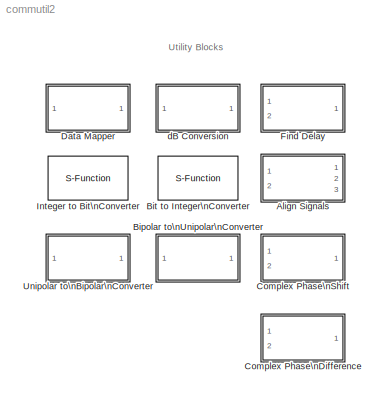
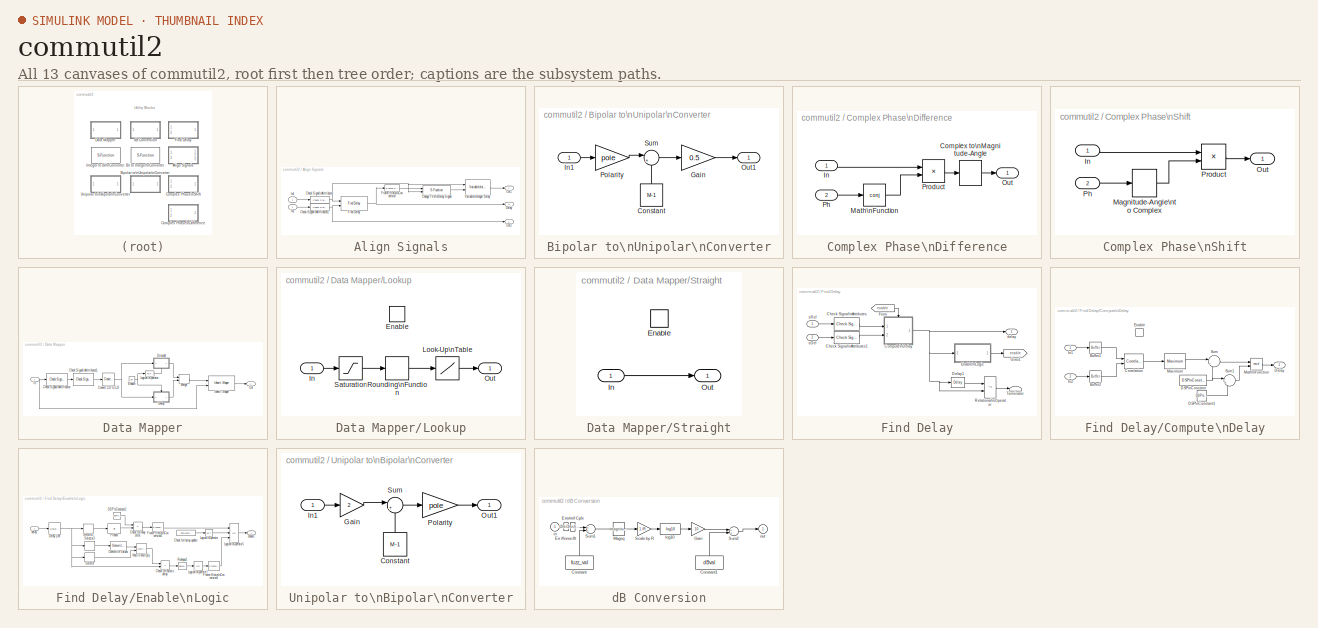
[diagram: thumbnail index - all 13 canvases of the model, root first then tree order]
MODEL commutil2
KIND library
BLOCK [SubSystem] Align Signals
  MaskCallbackString = |commblkalignsigs(gcb,'cbStopUpdate');|
  MaskDescription = Align two signals s1 and s2 by finding the delay between them using cross-correlation techniques, then by delaying s1 by the computed delay.  The input signal s2 should be delayed relative to the input s1, or else the computed delay will be incorrect, and the signals will not be properly aligned.
  MaskDisplay = disp('Align\\nSignals');\nport_label('input', 1, 's1');\nport_label('input', 2, 's2');\nport_label('output', 1, 's1');\nport_label('output', 2, 's2');\nport_label('output', 3, 'delay');
  MaskEnableString = on,on,on
  MaskHelp = helpview(commbhelp)
  MaskIconFrame = on
  MaskIconOpaque = on
  MaskIconRotate = none
  MaskIconUnits = autoscale
  MaskInitialization = commblkalignsigs(gcb,'init');
  MaskPromptString = Correlation window length (samples):|Disable recurring updates|Number of constant delay outputs to disable updates:
  MaskSelfModifiable = on
  MaskStyleString = edit,checkbox,edit
  MaskTabNameString = ,,
  MaskToolTipString = on,on,on
  MaskTunableValueString = on,on,on
  MaskType = Align Signals
  MaskValueString = 200|off|3
  MaskVarAliasString = ,,
  MaskVariables = corrLength=@1;stopUpdate=@2;numConstDelay=@3;
  MaskVisibilityString = on,on,off
  Ports = [2, 3]
  TreatAsAtomicUnit = off
BLOCK [S-Function] Align Signals/Change Ts of\nDelay Signal
  FunctionName = scomzohnoparams
  MaskDisplay = disp('Zero Order\\nHold');\nport_label('input', 1, 'In');\nport_label('input', 2, 'Ref');\nport_label('output', 1, 'Out');
  MaskIconFrame = on
  MaskIconOpaque = on
  MaskIconRotate = none
  MaskIconUnits = autoscale
  Ports = [2, 1]
BLOCK [Reference] Align Signals/Check Signal\nAttributes  REF=dspsigattribs/Check Signal\nAttributes
  Complexity = Ignore
  DatatypeCheckMethod = Ignore
  DatatypeGeneral = Boolean
  Dimensions = Vector (1-D or 2-D)
  DimsCheckMethod = Is...
  DtypeFixedSpecific = Any fixed-point
  DtypeFloatSpecific = Any floating-point
  DtypeIntSpecific = Any integer
  Frame = Sample-based
  Ports = [1, 1]
  SampleMode = Ignore
  ShowPortLabels = on
  SigAttribCheckMethod = Matches attributes exactly
  SourceBlock = dspsigattribs/Check Signal\nAttributes
  SourceType = Check Signal Attributes
BLOCK [Reference] Align Signals/Check Signal\nAttributes1  REF=dspsigattribs/Check Signal\nAttributes
  Complexity = Ignore
  DatatypeCheckMethod = Ignore
  DatatypeGeneral = Boolean
  Dimensions = Vector (1-D or 2-D)
  DimsCheckMethod = Is...
  DtypeFixedSpecific = Any fixed-point
  DtypeFloatSpecific = Any floating-point
  DtypeIntSpecific = Any integer
  Frame = Sample-based
  Ports = [1, 1]
  SampleMode = Ignore
  ShowPortLabels = on
  SigAttribCheckMethod = Matches attributes exactly
  SourceBlock = dspsigattribs/Check Signal\nAttributes
  SourceType = Check Signal Attributes
BLOCK [Outport] Align Signals/Delay
  BusOutputAsStruct = off
  IconDisplay = Port number
  Port = 3
BLOCK [Reference] Align Signals/Find Delay  REF=commutil2/Find Delay
  Ports = [2, 1]
  ShowPortLabels = on
  SourceBlock = commutil2/Find Delay
  SourceType = Find Delay
  chgSigOP = off
  corrLength = corrLength
  numConstDelay = 3
  stopUpdate = off
BLOCK [Reference] Align Signals/Frame Status\nConversion  REF=dspsigattribs/Frame Status\nConversion
  Ports = [1, 1]
  ShowPortLabels = off
  SourceBlock = dspsigattribs/Frame Status\nConversion
  SourceType = Frame Status Conversion
  growRefPort = off
  outframe = Frame-based
BLOCK [Inport] Align Signals/In1
  IconDisplay = Port number
BLOCK [Inport] Align Signals/In2
  IconDisplay = Port number
  Port = 2
BLOCK [Outport] Align Signals/Out1
  BusOutputAsStruct = off
  IconDisplay = Port number
BLOCK [Outport] Align Signals/Out2
  BusOutputAsStruct = off
  IconDisplay = Port number
  Port = 2
BLOCK [Reference] Align Signals/Variable\nInteger Delay  REF=dspsigops/Variable\nInteger Delay
  Ports = [2, 1]
  SourceBlock = dspsigops/Variable\nInteger Delay
  SourceType = Variable Integer Delay
  dmax = corrLength
  ic = 0
BLOCK [SubSystem] Bipolar to\nUnipolar\nConverter
  MaskCallbackString = |
  MaskDescription = Convert a bipolar signal into a unipolar signal in the range [0, M-1], where M is the M-ary number.
  MaskDisplay = disp('Bipolar to\\nUnipolar\\nConverter');\n
  MaskEnableString = on,on
  MaskHelp = helpview(commbhelp);
  MaskIconFrame = on
  MaskIconOpaque = on
  MaskIconRotate = none
  MaskIconUnits = autoscale
  MaskInitialization = if strcmp(polarity, 'Negative')\n   pole = -1;\nelse\n   pole = 1;\nend
  MaskPromptString = M-ary number:|Polarity:
  MaskStyleString = edit,popup(Positive|Negative)
  MaskTabNameString = ,
  MaskToolTipString = on,on
  MaskTunableValueString = on,on
  MaskType = Bipolar to Unipolar Converter
  MaskValueString = 4|Positive
  MaskVarAliasString = ,
  MaskVariables = M=@1;polarity=&2;
  MaskVisibilityString = on,on
  Ports = [1, 1]
  TreatAsAtomicUnit = off
BLOCK [Constant] Bipolar to\nUnipolar\nConverter/Constant
  Value = M-1
BLOCK [Gain] Bipolar to\nUnipolar\nConverter/Gain
  Gain = 0.5
  SaturateOnIntegerOverflow = off
BLOCK [Inport] Bipolar to\nUnipolar\nConverter/In1
  IconDisplay = Port number
BLOCK [Outport] Bipolar to\nUnipolar\nConverter/Out1
  BusOutputAsStruct = off
  IconDisplay = Port number
BLOCK [Gain] Bipolar to\nUnipolar\nConverter/Polarity
  Gain = pole
  SaturateOnIntegerOverflow = off
BLOCK [Sum] Bipolar to\nUnipolar\nConverter/Sum
  IconShape = round
  Inputs = |++
  Ports = [2, 1]
  SaturateOnIntegerOverflow = off
BLOCK [S-Function] Bit to Integer\nConverter
  FunctionName = scominttobit
  MaskDescription = Map a vector of bits to a corresponding vector of integers. The first bit of the input vector is assumed to be the most significant bit (MSB). The Number of bits per integer value defines how many bits are mapped to each integer.\n\nIn case of sample-based inputs, the input must be a vector whose width equals the number of bits per integer. In case of frame-based inputs, the input must be a column...<+77ch>
  MaskDisplay = disp('Bit to Integer\\nConverter')
  MaskEnableString = on
  MaskHelp = helpview(commbhelp)
  MaskIconFrame = on
  MaskIconOpaque = on
  MaskIconRotate = none
  MaskIconUnits = autoscale
  MaskPromptString = Number of bits per integer:
  MaskStyleString = edit
  MaskToolTipString = on
  MaskTunableValueString = on
  MaskType = Bit to Integer Converter
  MaskValueString = 3
  MaskVariables = nbits=@1;
  MaskVisibilityString = on
  Parameters = nbits,1
  Ports = [1, 1]
BLOCK [SubSystem] Complex Phase\nDifference
  MaskDescription = Output the phase difference between the two complex input signals. The range of the phase difference is from -pi to pi.
  MaskDisplay = disp('Complex Phase\\nDifference');
  MaskHelp = helpview(commbhelp)
  MaskIconFrame = on
  MaskIconOpaque = on
  MaskIconRotate = none
  MaskIconUnits = autoscale
  MaskType = Complex Phase Difference
  Ports = [2, 1]
  TreatAsAtomicUnit = off
BLOCK [ComplexToMagnitudeAngle] Complex Phase\nDifference/Complex to\nMagnitude-Angle
  Output = Angle
  Ports = [1, 1]
BLOCK [Inport] Complex Phase\nDifference/In
  IconDisplay = Port number
BLOCK [Math] Complex Phase\nDifference/Math\nFunction
  Operator = conj
  Ports = [1, 1]
BLOCK [Outport] Complex Phase\nDifference/Out
  BusOutputAsStruct = off
  IconDisplay = Port number
BLOCK [Inport] Complex Phase\nDifference/Ph
  IconDisplay = Port number
  Port = 2
BLOCK [Product] Complex Phase\nDifference/Product
  Ports = [2, 1]
  RndMeth = Floor
BLOCK [SubSystem] Complex Phase\nShift
  MaskDescription = Shift the phase of the complex input signal by the \"Ph\" input value.
  MaskDisplay = disp('Complex\\nPhase Shift');
  MaskHelp = helpview(commbhelp)
  MaskIconFrame = on
  MaskIconOpaque = off
  MaskIconRotate = none
  MaskIconUnits = autoscale
  MaskType = Complex Phase Shift
  Ports = [2, 1]
  TreatAsAtomicUnit = off
BLOCK [Inport] Complex Phase\nShift/In
  IconDisplay = Port number
BLOCK [MagnitudeAngleToComplex] Complex Phase\nShift/Magnitude-Angle\nto Complex
  ConstantPart = 1
  Input = Angle
  Ports = [1, 1]
BLOCK [Outport] Complex Phase\nShift/Out
  BusOutputAsStruct = off
  IconDisplay = Port number
BLOCK [Inport] Complex Phase\nShift/Ph
  IconDisplay = Port number
  Port = 2
BLOCK [Product] Complex Phase\nShift/Product
  Ports = [2, 1]
  RndMeth = Floor
BLOCK [SubSystem] Data Mapper
  MaskCallbackString = commblkmapdata(gcb,'MapMode');||
  MaskDescription = Map integer symbols from one coding scheme to another.\n\nThe input can be either a scalar, a sample-based vector, or a frame-based column vector.
  MaskDisplay = disp('Data\\nMapper');
  MaskEnableString = on,on,off
  MaskHelp = helpview(commbhelp)
  MaskIconFrame = on
  MaskIconOpaque = on
  MaskIconRotate = none
  MaskIconUnits = autoscale
  MaskInitialization = [En,IPValues,OPValues,SatValue]=commblkmapdata(gcb,'init',{MapMode M MapVec});
  MaskPromptString = Mapping mode:|Symbol set size (M):|Mapping vector:
  MaskSelfModifiable = on
  MaskStyleString = popup(Binary to Gray|Gray to Binary|User Defined|Straight through),edit,edit
  MaskTabNameString = ,,
  MaskToolTipString = on,on,on
  MaskTunableValueString = on,on,on
  MaskType = Data Mapper
  MaskValueString = Binary to Gray|8|[0 1 3 2 7 6 4 5]
  MaskVarAliasString = ,,
  MaskVariables = MapMode=@1;M=@2;MapVec=@3;
  MaskVisibilityString = on,on,on
  Ports = [1, 1]
  TreatAsAtomicUnit = off
BLOCK [Reference] Data Mapper/Check Signal\nAttributes  REF=dspsigattribs/Check Signal\nAttributes
  Complexity = Ignore
  DatatypeCheckMethod = Ignore
  DatatypeGeneral = Boolean
  Dimensions = Full matrix (2-D)
  DimsCheckMethod = Is...
  DtypeFixedSpecific = Any fixed-point
  DtypeFloatSpecific = Any floating-point
  DtypeIntSpecific = Any integer
  Frame = Ignore
  Ports = [1, 1]
  SampleMode = Ignore
  SigAttribCheckMethod = Matches attributes exactly
  SourceBlock = dspsigattribs/Check Signal\nAttributes
  SourceType = Check Signal Attributes
BLOCK [Reference] Data Mapper/Check Signal\nAttributes1  REF=dspsigattribs/Check Signal\nAttributes
  Complexity = Ignore
  DatatypeCheckMethod = Ignore
  DatatypeGeneral = Boolean
  Dimensions = Row vector (2-D)
  DimsCheckMethod = Is...
  DtypeFixedSpecific = Any fixed-point
  DtypeFloatSpecific = Any floating-point
  DtypeIntSpecific = Any integer
  Frame = Frame-based
  Ports = [1, 1]
  SampleMode = Ignore
  SigAttribCheckMethod = Matches attributes exactly
  SourceBlock = dspsigattribs/Check Signal\nAttributes
  SourceType = Check Signal Attributes
BLOCK [Reference] Data Mapper/Convert 2-D to 1-D  REF=dspsigattribs/Convert 2-D to 1-D
  Ports = [1, 1]
  SourceBlock = dspsigattribs/Convert 2-D to 1-D
  SourceType = Convert 2-D to 1-D
BLOCK [Constant] Data Mapper/Enable
  Value = En
BLOCK [Inport] Data Mapper/In
  IconDisplay = Port number
BLOCK [Reference] Data Mapper/Inherit Shape  REF=commblksprivate/Inherit Shape
  Ports = [2, 1]
  SourceBlock = commblksprivate/Inherit Shape
  SourceType = Inherit Shape
BLOCK [Logic] Data Mapper/Logical\nOperator
  Inputs = 1
  LogicDataType = float('double')
  Operator = NOT
  OutDataTypeMode = Specify via dialog
  Ports = [1, 1]
BLOCK [SubSystem] Data Mapper/Lookup
  Ports = [1, 1, 1]
  TreatAsAtomicUnit = on
BLOCK [EnablePort] Data Mapper/Lookup/Enable
  Ports = []
BLOCK [Inport] Data Mapper/Lookup/In
  IconDisplay = Port number
BLOCK [Lookup] Data Mapper/Lookup/Look-Up\nTable
  InputValues = IPValues
  OutputValues = OPValues
BLOCK [Outport] Data Mapper/Lookup/Out
  BusOutputAsStruct = off
  IconDisplay = Port number
BLOCK [Rounding] Data Mapper/Lookup/Rounding\nFunction
  Operator = round
BLOCK [Saturate] Data Mapper/Lookup/Saturation
  LowerLimit = 0
  UpperLimit = SatValue
BLOCK [Merge] Data Mapper/Merge
  Ports = [2, 1]
BLOCK [Outport] Data Mapper/Out
  BusOutputAsStruct = off
  IconDisplay = Port number
BLOCK [SubSystem] Data Mapper/Straight
  Ports = [1, 1, 1]
  TreatAsAtomicUnit = on
BLOCK [EnablePort] Data Mapper/Straight/Enable
  Ports = []
BLOCK [Inport] Data Mapper/Straight/In
  IconDisplay = Port number
BLOCK [Outport] Data Mapper/Straight/Out
  BusOutputAsStruct = off
  IconDisplay = Port number
BLOCK [SubSystem] Find Delay
  MaskCallbackString = |commblkfinddelay(gcb,'cbChgSigOP');|commblkfinddelay(gcb,'cbStopUpdate');|
  MaskDescription = Find the delay between two signals sRef and sDel by finding the maximum of the cross-correlation function between them.  The signal sDel should be delayed relative to sRef, or else the computed delay will be incorrect.\n\nThe optional \"change signal\" output port emits an impulse at the time instant when the current computed delay changes from the previous computed delay.
  MaskDisplay = disp('Find\\nDelay');
  MaskEnableString = on,on,on,on
  MaskHelp = helpview(commbhelp)
  MaskIconFrame = on
  MaskIconOpaque = off
  MaskIconRotate = none
  MaskIconUnits = autoscale
  MaskInitialization = commblkfinddelay(gcb,'init');
  MaskPromptString = Correlation window length (samples):|Include \"change signal\" output port|Disable recurring updates|Number of constant delay outputs to disable updates:
  MaskSelfModifiable = on
  MaskStyleString = edit,checkbox,checkbox,edit
  MaskTabNameString = ,,,
  MaskToolTipString = on,on,on,on
  MaskTunableValueString = on,on,on,on
  MaskType = Find Delay
  MaskValueString = 200|off|off|3
  MaskVarAliasString = ,,,
  MaskVariables = corrLength=@1;chgSigOP=@2;stopUpdate=@3;numConstDelay=@4;
  MaskVisibilityString = on,on,on,off
  Ports = [2, 1]
  TreatAsAtomicUnit = off
BLOCK [Reference] Find Delay/Check Signal\nAttributes  REF=dspsigattribs/Check Signal\nAttributes
  Complexity = Ignore
  DatatypeCheckMethod = Ignore
  DatatypeGeneral = Boolean
  Dimensions = Vector (1-D or 2-D)
  DimsCheckMethod = Is...
  DtypeFixedSpecific = Any fixed-point
  DtypeFloatSpecific = Any floating-point
  DtypeIntSpecific = Any integer
  Frame = Sample-based
  Ports = [1, 1]
  SampleMode = Ignore
  ShowPortLabels = on
  SigAttribCheckMethod = Matches attributes exactly
  SourceBlock = dspsigattribs/Check Signal\nAttributes
  SourceType = Check Signal Attributes
BLOCK [Reference] Find Delay/Check Signal\nAttributes1  REF=dspsigattribs/Check Signal\nAttributes
  Complexity = Ignore
  DatatypeCheckMethod = Ignore
  DatatypeGeneral = Boolean
  Dimensions = Vector (1-D or 2-D)
  DimsCheckMethod = Is...
  DtypeFixedSpecific = Any fixed-point
  DtypeFloatSpecific = Any floating-point
  DtypeIntSpecific = Any integer
  Frame = Sample-based
  Ports = [1, 1]
  SampleMode = Ignore
  ShowPortLabels = on
  SigAttribCheckMethod = Matches attributes exactly
  SourceBlock = dspsigattribs/Check Signal\nAttributes
  SourceType = Check Signal Attributes
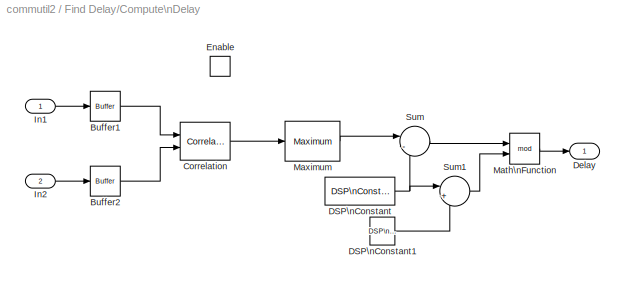
BLOCK [SubSystem] Find Delay/Compute\nDelay
  MaskDisplay = disp('Compute\\nDelay')
  MaskIconFrame = on
  MaskIconOpaque = on
  MaskIconRotate = none
  MaskIconUnits = autoscale
  Ports = [2, 1, 1]
  TreatAsAtomicUnit = off
BLOCK [Reference] Find Delay/Compute\nDelay/Buffer1  REF=dspbuff3/Buffer
  N = corrLength
  Ports = [1, 1]
  SourceBlock = dspbuff3/Buffer
  SourceType = Buffer
  V = 0
  ic = 0
BLOCK [Reference] Find Delay/Compute\nDelay/Buffer2  REF=dspbuff3/Buffer
  N = corrLength
  Ports = [1, 1]
  SourceBlock = dspbuff3/Buffer
  SourceType = Buffer
  V = 0
  ic = 0
BLOCK [Reference] Find Delay/Compute\nDelay/Correlation  REF=dspstat3/Correlation
  Ports = [2, 1]
  SourceBlock = dspstat3/Correlation
  SourceType = Correlation
  domain = Time
BLOCK [Reference] Find Delay/Compute\nDelay/DSP\nConstant  REF=dspsrcs4/DSP\nConstant
  FramebasedOutput = -inf
  InterpretAs1D = -inf
  Ports = [0, 1]
  SampleMode = Discrete
  SourceBlock = dspsrcs4/DSP\nConstant
  SourceType = DSP Constant
  Ts = -inf
  Value = corrLength
  additionalParams = off
  continuousOutput = Sample-based
  dataType = Inherit from 'Constant value'
  discreteOutput = Sample-based
  fracBitsMode = Best precision
  framePeriod = 2
  numFracBits = 15
  sampTime = -1
  udDataType = sfix(16)
  wordLen = 16
BLOCK [Reference] Find Delay/Compute\nDelay/DSP\nConstant1  REF=dspsrcs4/DSP\nConstant
  FramebasedOutput = -inf
  InterpretAs1D = -inf
  Ports = [0, 1]
  SampleMode = Discrete
  SourceBlock = dspsrcs4/DSP\nConstant
  SourceType = DSP Constant
  Ts = -inf
  Value = 1
  additionalParams = off
  continuousOutput = Sample-based
  dataType = Inherit from 'Constant value'
  discreteOutput = Sample-based
  fracBitsMode = Best precision
  framePeriod = 2
  numFracBits = 15
  sampTime = -1
  udDataType = sfix(16)
  wordLen = 16
BLOCK [Outport] Find Delay/Compute\nDelay/Delay
  BusOutputAsStruct = off
  IconDisplay = Port number
BLOCK [EnablePort] Find Delay/Compute\nDelay/Enable
  Ports = []
BLOCK [Inport] Find Delay/Compute\nDelay/In1
  IconDisplay = Port number
BLOCK [Inport] Find Delay/Compute\nDelay/In2
  IconDisplay = Port number
  Port = 2
BLOCK [Math] Find Delay/Compute\nDelay/Math\nFunction
  Operator = mod
  Ports = [2, 1]
BLOCK [Reference] Find Delay/Compute\nDelay/Maximum  REF=dspstat3/Maximum
  Ports = [1, 1]
  SourceBlock = dspstat3/Maximum
  SourceType = Maximum
  fcn = Index
  reset = None
BLOCK [Sum] Find Delay/Compute\nDelay/Sum
  IconShape = round
  InputSameDT = off
  Inputs = |-+
  OutDataTypeMode = Inherit via internal rule
  Ports = [2, 1]
BLOCK [Sum] Find Delay/Compute\nDelay/Sum1
  IconShape = round
  InputSameDT = off
  Inputs = |+-
  OutDataTypeMode = Inherit via internal rule
  Ports = [2, 1]
BLOCK [Reference] Find Delay/Delay1  REF=dspsigops/Delay
  Ports = [1, 1]
  SourceBlock = dspsigops/Delay
  SourceType = Delay
  delay = 1
  dif_ic_for_ch = off
  dif_ic_for_dly = off
  dly_unit = Samples
  ic = 0
  ic_detail = off
  reset_popup = None
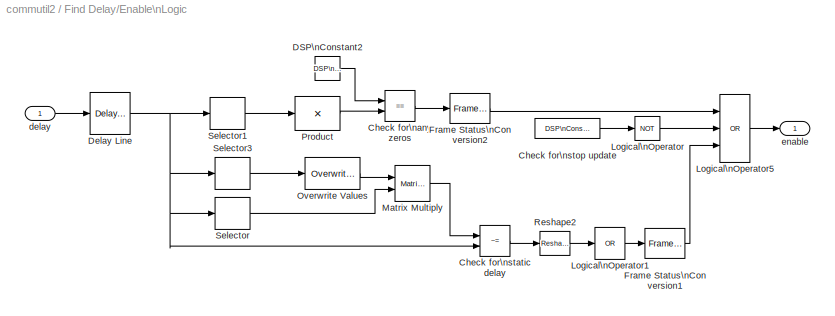
BLOCK [SubSystem] Find Delay/Enable\nLogic
  Ports = [1, 1]
  TreatAsAtomicUnit = off
BLOCK [RelationalOperator] Find Delay/Enable\nLogic/Check for\nany zeros
  InputSameDT = off
  Operator = ==
BLOCK [RelationalOperator] Find Delay/Enable\nLogic/Check for\nstatic delay
  InputSameDT = off
  Operator = ~=
BLOCK [Reference] Find Delay/Enable\nLogic/Check for\nstop update  REF=dspsrcs4/DSP\nConstant
  FramebasedOutput = -inf
  InterpretAs1D = -inf
  Ports = [0, 1]
  SampleMode = Discrete
  SourceBlock = dspsrcs4/DSP\nConstant
  SourceType = DSP Constant
  Ts = -inf
  Value = stopUpdate
  additionalParams = on
  continuousOutput = Sample-based
  dataType = boolean
  discreteOutput = Sample-based
  fracBitsMode = Best precision
  framePeriod = 2
  numFracBits = 15
  sampTime = -1
  udDataType = sfix(16)
  wordLen = 16
BLOCK [Reference] Find Delay/Enable\nLogic/DSP\nConstant2  REF=dspsrcs4/DSP\nConstant
  FramebasedOutput = -inf
  InterpretAs1D = -inf
  Ports = [0, 1]
  SampleMode = Discrete
  SourceBlock = dspsrcs4/DSP\nConstant
  SourceType = DSP Constant
  Ts = -inf
  Value = 0
  additionalParams = off
  continuousOutput = Sample-based
  dataType = Inherit from 'Constant value'
  discreteOutput = Frame-based
  fracBitsMode = Best precision
  framePeriod = -1
  numFracBits = 15
  sampTime = -1
  udDataType = sfix(16)
  wordLen = 16
BLOCK [Reference] Find Delay/Enable\nLogic/Delay Line  REF=dspbuff3/Delay Line
  Ports = [1, 1]
  SourceBlock = dspbuff3/Delay Line
  SourceType = Delay Line
  ic = 0
  siz = numConstDelay
BLOCK [Reference] Find Delay/Enable\nLogic/Frame Status\nConversion1  REF=dspsigattribs/Frame Status\nConversion
  Ports = [1, 1]
  SourceBlock = dspsigattribs/Frame Status\nConversion
  SourceType = Frame Status Conversion
  growRefPort = off
  outframe = Sample-based
BLOCK [Reference] Find Delay/Enable\nLogic/Frame Status\nConversion2  REF=dspsigattribs/Frame Status\nConversion
  Ports = [1, 1]
  SourceBlock = dspsigattribs/Frame Status\nConversion
  SourceType = Frame Status Conversion
  growRefPort = off
  outframe = Sample-based
BLOCK [Logic] Find Delay/Enable\nLogic/Logical\nOperator
  AllPortsSameDT = off
  Operator = NOT
  Ports = [1, 1]
BLOCK [Logic] Find Delay/Enable\nLogic/Logical\nOperator1
  AllPortsSameDT = off
  Inputs = 1
  Operator = OR
  Ports = [1, 1]
BLOCK [Logic] Find Delay/Enable\nLogic/Logical\nOperator5
  Inputs = 3
  Operator = OR
  Ports = [3, 1]
BLOCK [Reference] Find Delay/Enable\nLogic/Matrix Multiply  REF=dspmtrx3/Matrix Multiply
  OptimizationLevel = None
  Ports = [2, 1]
  SourceBlock = dspmtrx3/Matrix Multiply
  SourceType = Matrix Multiply
  numInputPorts = 2
BLOCK [Reference] Find Delay/Enable\nLogic/Overwrite Values  REF=dspmtrx3/Overwrite Values
  ColEndIndex = 1
  ColEndMode = Last
  ColSpan = One column
  ColStartIndex = 1
  ColStartMode = First
  ConstValue = 1
  DiagEndIndex = 4
  DiagEndMode = Index
  DiagSpan = Range of elements
  DiagStartIndex = 2
  DiagStartMode = Index
  OverWriteDiag = Submatrix
  Ports = [1, 1]
  RowEndIndex = 1
  RowEndMode = Last
  RowSpan = All rows
  RowStartIndex = 2
  RowStartMode = Index
  SourceBlock = dspmtrx3/Overwrite Values
  SourceType = Overwrite Values
  valFrom2ndIP = Specify via dialog
BLOCK [Product] Find Delay/Enable\nLogic/Product
  InputSameDT = off
  Inputs = 1
  OutDataTypeMode = double
  Ports = [1, 1]
  RndMeth = Floor
BLOCK [Reference] Find Delay/Enable\nLogic/Reshape2  REF=simulink/Math\nOperations/Reshape
  OutputDimensionality = Column vector
  OutputDimensions = [1,1]
  Ports = [1, 1]
  SourceBlock = simulink/Math\nOperations/Reshape
  SourceType = Reshape
BLOCK [Selector] Find Delay/Enable\nLogic/Selector
  Columns = -1
  Elements = [1]
  InputPortWidth = numConstDelay
  InputType = Matrix
  Ports = [1, 1]
BLOCK [Selector] Find Delay/Enable\nLogic/Selector1
  Elements = [1]
  InputPortWidth = numConstDelay
  InputType = Matrix
  Ports = [1, 1]
  Rows = -1
BLOCK [Selector] Find Delay/Enable\nLogic/Selector3
  Elements = [1]
  InputPortWidth = numConstDelay
  InputType = Matrix
  Ports = [1, 1]
  Rows = -1
BLOCK [Inport] Find Delay/Enable\nLogic/delay
  IconDisplay = Port number
BLOCK [Outport] Find Delay/Enable\nLogic/enable
  BusOutputAsStruct = off
  IconDisplay = Port number
BLOCK [From] Find Delay/From
  CloseFcn = tagdialog Close
  GotoTag = enable
BLOCK [Goto] Find Delay/Goto1
  GotoTag = enable
  TagVisibility = local
BLOCK [RelationalOperator] Find Delay/Relational\nOperator
  InputSameDT = off
  Operator = ~=
BLOCK [Terminator] Find Delay/Terminator
BLOCK [Outport] Find Delay/delay
  BusOutputAsStruct = off
  IconDisplay = Port number
BLOCK [Inport] Find Delay/sDel
  IconDisplay = Port number
  Port = 2
BLOCK [Inport] Find Delay/sRef
  IconDisplay = Port number
BLOCK [S-Function] Integer to Bit\nConverter
  FunctionName = scominttobit
  MaskDescription = Map a vector of integers to a vector of bits. The first bit of the output vector is the most significant bit (MSB). The Number of bits per integer value defines how many bits are mapped from each integer.\n\nThe input can be either a scalar or a frame-based column vector.
  MaskDisplay = disp('Integer to Bit\\nConverter')
  MaskEnableString = on
  MaskHelp = helpview(commbhelp)
  MaskIconFrame = on
  MaskIconOpaque = on
  MaskIconRotate = none
  MaskIconUnits = autoscale
  MaskPromptString = Number of bits per integer:
  MaskStyleString = edit
  MaskToolTipString = on
  MaskTunableValueString = on
  MaskType = Integer to Bit Converter
  MaskValueString = 3
  MaskVariables = nbits=@1;
  MaskVisibilityString = on
  Parameters = nbits,2
  Ports = [1, 1]
BLOCK [SubSystem] Unipolar to\nBipolar\nConverter
  MaskCallbackString = |
  MaskDescription = Convert a unipolar signal in the range [0, M-1], where M is the M-ary number,  into a bipolar signal.
  MaskDisplay = disp('Unipolar to\\nBipolar\\nConverter');\n
  MaskEnableString = on,on
  MaskHelp = helpview(commbhelp);
  MaskIconFrame = on
  MaskIconOpaque = on
  MaskIconRotate = none
  MaskIconUnits = autoscale
  MaskInitialization = if strcmp(polarity, 'Negative')\n   pole = -1;\nelse\n   pole = 1;\nend
  MaskPromptString = M-ary number:|Polarity:
  MaskStyleString = edit,popup(Positive|Negative)
  MaskTabNameString = ,
  MaskToolTipString = on,on
  MaskTunableValueString = on,on
  MaskType = Unipolar to Bipolar Converter
  MaskValueString = 4|Positive
  MaskVarAliasString = ,
  MaskVariables = M=@1;polarity=&2;
  MaskVisibilityString = on,on
  Ports = [1, 1]
  TreatAsAtomicUnit = off
BLOCK [Constant] Unipolar to\nBipolar\nConverter/Constant
  Value = M-1
BLOCK [Gain] Unipolar to\nBipolar\nConverter/Gain
  Gain = 2
  SaturateOnIntegerOverflow = off
BLOCK [Inport] Unipolar to\nBipolar\nConverter/In1
  IconDisplay = Port number
BLOCK [Outport] Unipolar to\nBipolar\nConverter/Out1
  BusOutputAsStruct = off
  IconDisplay = Port number
BLOCK [Gain] Unipolar to\nBipolar\nConverter/Polarity
  Gain = pole
  SaturateOnIntegerOverflow = off
BLOCK [Sum] Unipolar to\nBipolar\nConverter/Sum
  IconShape = round
  Inputs = |+-
  Ports = [2, 1]
  SaturateOnIntegerOverflow = off
BLOCK [SubSystem] dB Conversion
  MaskCallbackString = dspblkdb2|dspblkdb2||
  MaskDescription = Convert input of Watts or Volts to decibels. Voltage inputs are first converted to power relative to the specified load resistance, where P = (V^2)/R.  When converting to dBm, the power is scaled to units of mWatts.
  MaskDisplay = disp(str)\n\n
  MaskEnableString = on,on,on,on
  MaskHelp = web(dspbhelp);
  MaskIconFrame = on
  MaskIconOpaque = on
  MaskIconRotate = none
  MaskIconUnits = autoscale
  MaskInitialization = [str fuzz_val dBval] = dspblkdb2('init');\ndspblkdb2('checkparam');\ndspblkdb2('update');
  MaskPromptString = Convert to:|Input signal:|Load resistance (ohms):|Add  eps to input to protect against  \"log(0) = -inf\"
  MaskSelfModifiable = on
  MaskStyleString = popup(dB|dBm),popup(Power|Amplitude),edit,checkbox
  MaskTabNameString = ,,,
  MaskToolTipString = on,on,on,on
  MaskTunableValueString = on,on,on,on
  MaskType = dB Conversion
  MaskValueString = dB|Amplitude|1|on
  MaskVarAliasString = ,,,
  MaskVariables = dBtype=@1;intype=@2;R=@3;fuzz=@4;
  MaskVisibilityString = on,on,on,on
  Ports = [1, 1]
  TreatAsAtomicUnit = off
BLOCK [Constant] dB Conversion/Constant
  OutDataTypeMode = Inherit via back propagation
  Value = fuzz_val
BLOCK [Constant] dB Conversion/Constant1
  OutDataTypeMode = Inherit via back propagation
  Value = dBval
BLOCK [Reference] dB Conversion/Err if\nnon-flt  REF=dspsigattribs/Check Signal\nAttributes
  Complexity = Ignore
  DatatypeCheckMethod = Is...
  DatatypeGeneral = Floating-point
  Dimensions = 1-D
  DimsCheckMethod = Ignore
  DtypeFixedSpecific = Any fixed-point
  DtypeFloatSpecific = Any floating-point
  DtypeIntSpecific = Any integer
  Frame = Ignore
  Ports = [1, 1]
  SampleMode = Ignore
  SigAttribCheckMethod = Does not match attributes exactly
  SourceBlock = dspsigattribs/Check Signal\nAttributes
  SourceType = Check Signal Attributes
BLOCK [Reference] dB Conversion/Error\nif Cplx  REF=dspsigattribs/Check Signal\nAttributes
  Complexity = Complex
  DatatypeCheckMethod = Ignore
  DatatypeGeneral = Boolean
  Dimensions = 1-D
  DimsCheckMethod = Ignore
  DtypeFixedSpecific = Any fixed-point
  DtypeFloatSpecific = Any floating-point
  DtypeIntSpecific = Any integer
  Frame = Ignore
  Ports = [1, 1]
  SampleMode = Ignore
  SigAttribCheckMethod = Matches attributes exactly
  SourceBlock = dspsigattribs/Check Signal\nAttributes
  SourceType = Check Signal Attributes
BLOCK [Gain] dB Conversion/Gain
  Gain = 10
BLOCK [Math] dB Conversion/Magsq
  Operator = magnitude^2
  Ports = [1, 1]
BLOCK [Gain] dB Conversion/Scale by R
  Gain = 1./R
BLOCK [Sum] dB Conversion/Sum1
  Ports = [2, 1]
BLOCK [Sum] dB Conversion/Sum2
  Ports = [2, 1]
BLOCK [Inport] dB Conversion/in
  IconDisplay = Port number
BLOCK [Math] dB Conversion/log10
  Operator = log10
  Ports = [1, 1]
BLOCK [Outport] dB Conversion/out
  BusOutputAsStruct = off
  IconDisplay = Port number
  InitialOutput = 0
ANNOTATION (root): Utility Blocks
LINE Align Signals/Change Ts of\nDelay Signal:1 -> Align Signals/Variable\nInteger Delay:2
NET Align Signals/Check Signal\nAttributes1:1 -> Align Signals/Find Delay:2, Align Signals/Out2:1
NET Align Signals/Check Signal\nAttributes:1 -> Align Signals/Change Ts of\nDelay Signal:2, Align Signals/Find Delay:1, Align Signals/Variable\nInteger Delay:1
NET Align Signals/Find Delay:1 -> Align Signals/Delay:1, Align Signals/Frame Status\nConversion:1
LINE Align Signals/Frame Status\nConversion:1 -> Align Signals/Change Ts of\nDelay Signal:1
LINE Align Signals/In1:1 -> Align Signals/Check Signal\nAttributes:1
LINE Align Signals/In2:1 -> Align Signals/Check Signal\nAttributes1:1
LINE Align Signals/Variable\nInteger Delay:1 -> Align Signals/Out1:1
LINE Bipolar to\nUnipolar\nConverter/Constant:1 -> Bipolar to\nUnipolar\nConverter/Sum:2
LINE Bipolar to\nUnipolar\nConverter/Gain:1 -> Bipolar to\nUnipolar\nConverter/Out1:1
LINE Bipolar to\nUnipolar\nConverter/In1:1 -> Bipolar to\nUnipolar\nConverter/Polarity:1
LINE Bipolar to\nUnipolar\nConverter/Polarity:1 -> Bipolar to\nUnipolar\nConverter/Sum:1
LINE Bipolar to\nUnipolar\nConverter/Sum:1 -> Bipolar to\nUnipolar\nConverter/Gain:1
LINE Complex Phase\nDifference/Complex to\nMagnitude-Angle:1 -> Complex Phase\nDifference/Out:1
LINE Complex Phase\nDifference/In:1 -> Complex Phase\nDifference/Product:1
LINE Complex Phase\nDifference/Math\nFunction:1 -> Complex Phase\nDifference/Product:2
LINE Complex Phase\nDifference/Ph:1 -> Complex Phase\nDifference/Math\nFunction:1
LINE Complex Phase\nDifference/Product:1 -> Complex Phase\nDifference/Complex to\nMagnitude-Angle:1
LINE Complex Phase\nShift/In:1 -> Complex Phase\nShift/Product:1
LINE Complex Phase\nShift/Magnitude-Angle\nto Complex:1 -> Complex Phase\nShift/Product:2
LINE Complex Phase\nShift/Ph:1 -> Complex Phase\nShift/Magnitude-Angle\nto Complex:1
LINE Complex Phase\nShift/Product:1 -> Complex Phase\nShift/Out:1
LINE Data Mapper/Check Signal\nAttributes1:1 -> Data Mapper/Convert 2-D to 1-D:1
LINE Data Mapper/Check Signal\nAttributes:1 -> Data Mapper/Check Signal\nAttributes1:1
NET Data Mapper/Convert 2-D to 1-D:1 -> Data Mapper/Lookup:1, Data Mapper/Straight:1
NET Data Mapper/Enable:1 -> Data Mapper/Logical\nOperator:1, Data Mapper/Lookup:enable
NET Data Mapper/In:1 -> Data Mapper/Check Signal\nAttributes:1, Data Mapper/Inherit Shape:2
LINE Data Mapper/Inherit Shape:1 -> Data Mapper/Out:1
LINE Data Mapper/Logical\nOperator:1 -> Data Mapper/Straight:enable
LINE Data Mapper/Lookup/In:1 -> Data Mapper/Lookup/Saturation:1
LINE Data Mapper/Lookup/Look-Up\nTable:1 -> Data Mapper/Lookup/Out:1
LINE Data Mapper/Lookup/Rounding\nFunction:1 -> Data Mapper/Lookup/Look-Up\nTable:1
LINE Data Mapper/Lookup/Saturation:1 -> Data Mapper/Lookup/Rounding\nFunction:1
LINE Data Mapper/Lookup:1 -> Data Mapper/Merge:2
LINE Data Mapper/Merge:1 -> Data Mapper/Inherit Shape:1
LINE Data Mapper/Straight/In:1 -> Data Mapper/Straight/Out:1
LINE Data Mapper/Straight:1 -> Data Mapper/Merge:1
LINE Find Delay/Check Signal\nAttributes1:1 -> Find Delay/Compute\nDelay:2
LINE Find Delay/Check Signal\nAttributes:1 -> Find Delay/Compute\nDelay:1
LINE Find Delay/Compute\nDelay/Buffer1:1 -> Find Delay/Compute\nDelay/Correlation:1
LINE Find Delay/Compute\nDelay/Buffer2:1 -> Find Delay/Compute\nDelay/Correlation:2
LINE Find Delay/Compute\nDelay/Correlation:1 -> Find Delay/Compute\nDelay/Maximum:1
LINE Find Delay/Compute\nDelay/DSP\nConstant1:1 -> Find Delay/Compute\nDelay/Sum1:2
NET Find Delay/Compute\nDelay/DSP\nConstant:1 -> Find Delay/Compute\nDelay/Sum1:1, Find Delay/Compute\nDelay/Sum:2
LINE Find Delay/Compute\nDelay/In1:1 -> Find Delay/Compute\nDelay/Buffer1:1
LINE Find Delay/Compute\nDelay/In2:1 -> Find Delay/Compute\nDelay/Buffer2:1
LINE Find Delay/Compute\nDelay/Math\nFunction:1 -> Find Delay/Compute\nDelay/Delay:1
LINE Find Delay/Compute\nDelay/Maximum:1 -> Find Delay/Compute\nDelay/Sum:1
LINE Find Delay/Compute\nDelay/Sum1:1 -> Find Delay/Compute\nDelay/Math\nFunction:2
LINE Find Delay/Compute\nDelay/Sum:1 -> Find Delay/Compute\nDelay/Math\nFunction:1
NET Find Delay/Compute\nDelay:1 -> Find Delay/Delay1:1, Find Delay/Enable\nLogic:1, Find Delay/Relational\nOperator:2, Find Delay/delay:1
LINE Find Delay/Delay1:1 -> Find Delay/Relational\nOperator:1
LINE Find Delay/Enable\nLogic/Check for\nany zeros:1 -> Find Delay/Enable\nLogic/Frame Status\nConversion2:1
LINE Find Delay/Enable\nLogic/Check for\nstatic delay:1 -> Find Delay/Enable\nLogic/Reshape2:1
LINE Find Delay/Enable\nLogic/Check for\nstop update:1 -> Find Delay/Enable\nLogic/Logical\nOperator:1
LINE Find Delay/Enable\nLogic/DSP\nConstant2:1 -> Find Delay/Enable\nLogic/Check for\nany zeros:1
NET Find Delay/Enable\nLogic/Delay Line:1 -> Find Delay/Enable\nLogic/Check for\nstatic delay:2, Find Delay/Enable\nLogic/Selector1:1, Find Delay/Enable\nLogic/Selector3:1, Find Delay/Enable\nLogic/Selector:1
LINE Find Delay/Enable\nLogic/Frame Status\nConversion1:1 -> Find Delay/Enable\nLogic/Logical\nOperator5:3
LINE Find Delay/Enable\nLogic/Frame Status\nConversion2:1 -> Find Delay/Enable\nLogic/Logical\nOperator5:1
LINE Find Delay/Enable\nLogic/Logical\nOperator1:1 -> Find Delay/Enable\nLogic/Frame Status\nConversion1:1
LINE Find Delay/Enable\nLogic/Logical\nOperator5:1 -> Find Delay/Enable\nLogic/enable:1
LINE Find Delay/Enable\nLogic/Logical\nOperator:1 -> Find Delay/Enable\nLogic/Logical\nOperator5:2
LINE Find Delay/Enable\nLogic/Matrix Multiply:1 -> Find Delay/Enable\nLogic/Check for\nstatic delay:1
LINE Find Delay/Enable\nLogic/Overwrite Values:1 -> Find Delay/Enable\nLogic/Matrix Multiply:1
LINE Find Delay/Enable\nLogic/Product:1 -> Find Delay/Enable\nLogic/Check for\nany zeros:2
LINE Find Delay/Enable\nLogic/Reshape2:1 -> Find Delay/Enable\nLogic/Logical\nOperator1:1
LINE Find Delay/Enable\nLogic/Selector1:1 -> Find Delay/Enable\nLogic/Product:1
LINE Find Delay/Enable\nLogic/Selector3:1 -> Find Delay/Enable\nLogic/Overwrite Values:1
LINE Find Delay/Enable\nLogic/Selector:1 -> Find Delay/Enable\nLogic/Matrix Multiply:2
LINE Find Delay/Enable\nLogic/delay:1 -> Find Delay/Enable\nLogic/Delay Line:1
LINE Find Delay/Enable\nLogic:1 -> Find Delay/Goto1:1
LINE Find Delay/From:1 -> Find Delay/Compute\nDelay:enable
LINE Find Delay/Relational\nOperator:1 -> Find Delay/Terminator:1
LINE Find Delay/sDel:1 -> Find Delay/Check Signal\nAttributes1:1
LINE Find Delay/sRef:1 -> Find Delay/Check Signal\nAttributes:1
LINE Unipolar to\nBipolar\nConverter/Constant:1 -> Unipolar to\nBipolar\nConverter/Sum:2
LINE Unipolar to\nBipolar\nConverter/Gain:1 -> Unipolar to\nBipolar\nConverter/Sum:1
LINE Unipolar to\nBipolar\nConverter/In1:1 -> Unipolar to\nBipolar\nConverter/Gain:1
LINE Unipolar to\nBipolar\nConverter/Polarity:1 -> Unipolar to\nBipolar\nConverter/Out1:1
LINE Unipolar to\nBipolar\nConverter/Sum:1 -> Unipolar to\nBipolar\nConverter/Polarity:1
LINE dB Conversion/Constant1:1 -> dB Conversion/Sum2:2
LINE dB Conversion/Constant:1 -> dB Conversion/Sum1:2
LINE dB Conversion/Err if\nnon-flt:1 -> dB Conversion/Error\nif Cplx:1
LINE dB Conversion/Error\nif Cplx:1 -> dB Conversion/Sum1:1
LINE dB Conversion/Gain:1 -> dB Conversion/Sum2:1
LINE dB Conversion/Magsq:1 -> dB Conversion/Scale by R:1
LINE dB Conversion/Scale by R:1 -> dB Conversion/log10:1
LINE dB Conversion/Sum1:1 -> dB Conversion/Magsq:1
LINE dB Conversion/Sum2:1 -> dB Conversion/out:1
LINE dB Conversion/in:1 -> dB Conversion/Err if\nnon-flt:1
LINE dB Conversion/log10:1 -> dB Conversion/Gain:1
note: NET lines group one-source signal fan-out (src -> all destinations, sorted); 1:1 wires keep LINE
